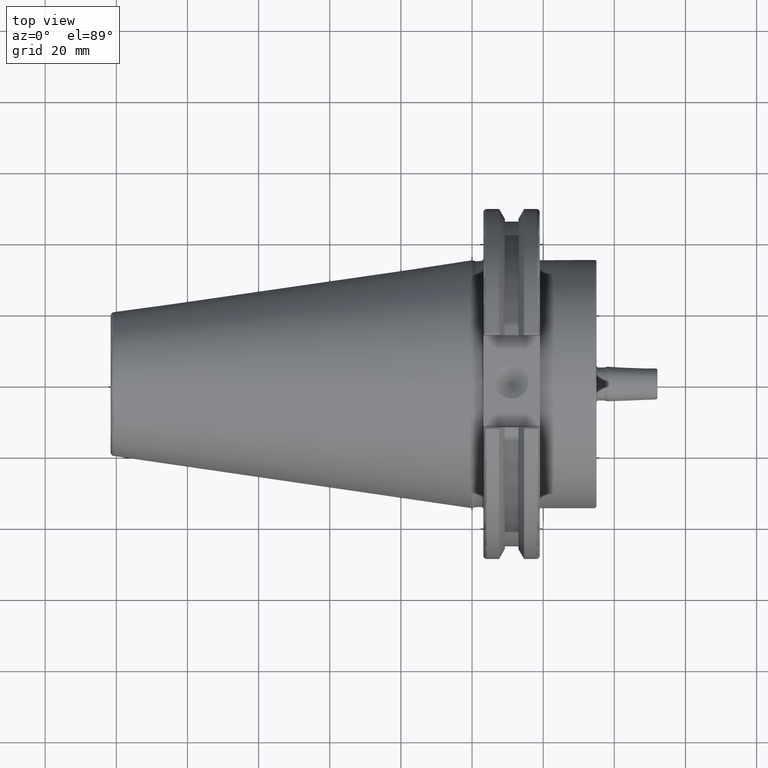
[diagram: clean part render]
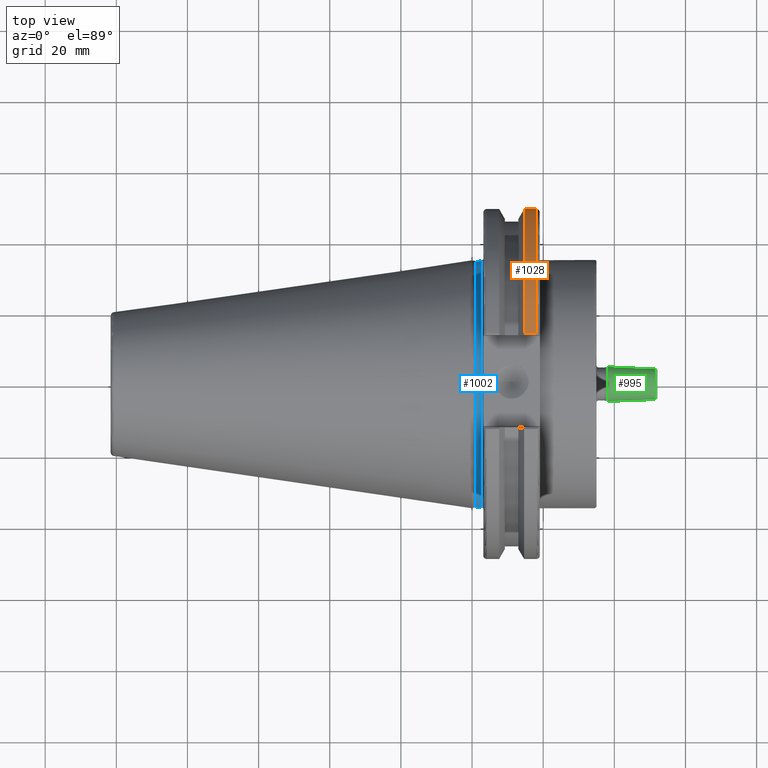
[diagram: same view with three faces highlighted in distinct colors, each labeled with its STEP entity id]
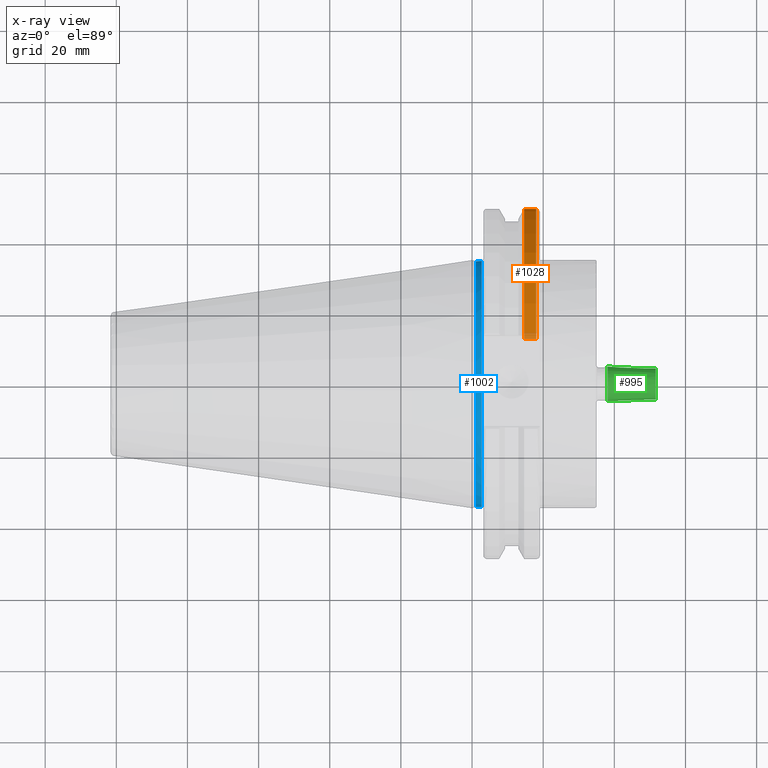
[diagram: x-ray of the same camera — body ghosted, the three highlighted faces saturated]
A machine part, top view with three faces highlighted in distinct colors.
The next image is the same camera in x-ray (body ghosted, the three faces saturated) — at least one of them is partly hidden behind the body in this view.
Their STEP definitions:

[orange] entity #1028 — the highlighted cylindrical surface (partial cylindrical patch) has radius 49.2125 mm, axis along (1, 0, 0).
#140=FACE_OUTER_BOUND('',#204,.T.);
#204=EDGE_LOOP('',(#887,#888,#889,#890));
#245=LINE('',#1610,#314);
#290=LINE('',#1870,#359);
#314=VECTOR('',#1288,10.);
#359=VECTOR('',#1409,10.);
#390=CIRCLE('',#1112,49.2125);
#404=CIRCLE('',#1151,49.2125);
#452=VERTEX_POINT('',#1584);
#453=VERTEX_POINT('',#1593);
#455=VERTEX_POINT('',#1606);
#512=VERTEX_POINT('',#1868);
#563=EDGE_CURVE('',#452,#453,#390,.T.);
#567=EDGE_CURVE('',#455,#452,#245,.T.);
#649=EDGE_CURVE('',#455,#512,#404,.T.);
#650=EDGE_CURVE('',#453,#512,#290,.T.);
#887=ORIENTED_EDGE('',*,*,#563,.F.);
#888=ORIENTED_EDGE('',*,*,#567,.F.);
#889=ORIENTED_EDGE('',*,*,#649,.T.);
#890=ORIENTED_EDGE('',*,*,#650,.F.);
#984=CYLINDRICAL_SURFACE('',#1150,49.2125);
#1028=ADVANCED_FACE('',(#140),#984,.T.);
#1112=AXIS2_PLACEMENT_3D('',#1594,#1283,#1284);
#1150=AXIS2_PLACEMENT_3D('',#1867,#1405,#1406);
#1151=AXIS2_PLACEMENT_3D('',#1869,#1407,#1408);
#1283=DIRECTION('center_axis',(1.,0.,0.));
#1284=DIRECTION('ref_axis',(0.,1.,-6.12323399573677E-17));
#1288=DIRECTION('',(1.,0.,0.));
#1405=DIRECTION('center_axis',(1.,0.,0.));
#1406=DIRECTION('ref_axis',(0.,1.,0.));
#1407=DIRECTION('center_axis',(1.,0.,0.));
#1408=DIRECTION('ref_axis',(0.,0.,-1.));
#1409=DIRECTION('',(-1.,0.,0.));
#1584=CARTESIAN_POINT('',(18.05,13.4317035994433,-47.3440544806494));
#1593=CARTESIAN_POINT('',(18.05,13.4317035994433,47.3440544806494));
#1594=CARTESIAN_POINT('Origin',(18.05,0.,0.));
#1606=CARTESIAN_POINT('',(14.6534090340487,13.4317035994433,-47.3440544806494));
#1610=CARTESIAN_POINT('',(16.8517045170244,13.4317035994433,-47.3440544806494));
#1867=CARTESIAN_POINT('Origin',(16.8517045170244,0.,0.));
#1868=CARTESIAN_POINT('',(14.6534090340487,13.4317035994433,47.3440544806494));
#1869=CARTESIAN_POINT('Origin',(14.6534090340487,0.,0.));
#1870=CARTESIAN_POINT('',(16.8517045170244,13.4317035994433,47.3440544806494));

[blue] entity #1002 — the highlighted cylindrical surface (bore or boss wall) has radius 34.625 mm, axis along (1, 0, 0).
#114=FACE_OUTER_BOUND('',#176,.T.);
#176=EDGE_LOOP('',(#733,#734,#735,#736,#737));
#243=LINE('',#1564,#312);
#312=VECTOR('',#1276,34.625);
#382=CIRCLE('',#1101,34.625);
#385=CIRCLE('',#1104,34.625);
#388=CIRCLE('',#1109,34.625);
#432=VERTEX_POINT('',#1530);
#433=VERTEX_POINT('',#1531);
#447=VERTEX_POINT('',#1563);
#541=EDGE_CURVE('',#432,#433,#382,.T.);
#544=EDGE_CURVE('',#433,#432,#385,.T.);
#557=EDGE_CURVE('',#432,#447,#243,.T.);
#558=EDGE_CURVE('',#447,#447,#388,.T.);
#733=ORIENTED_EDGE('',*,*,#541,.F.);
#734=ORIENTED_EDGE('',*,*,#557,.T.);
#735=ORIENTED_EDGE('',*,*,#558,.T.);
#736=ORIENTED_EDGE('',*,*,#557,.F.);
#737=ORIENTED_EDGE('',*,*,#544,.F.);
#980=CYLINDRICAL_SURFACE('',#1108,34.625);
#1002=ADVANCED_FACE('',(#114),#980,.T.);
#1101=AXIS2_PLACEMENT_3D('',#1532,#1250,#1251);
#1104=AXIS2_PLACEMENT_3D('',#1536,#1256,#1257);
#1108=AXIS2_PLACEMENT_3D('',#1562,#1274,#1275);
#1109=AXIS2_PLACEMENT_3D('',#1565,#1277,#1278);
#1250=DIRECTION('center_axis',(1.,0.,0.));
#1251=DIRECTION('ref_axis',(0.,-1.,1.83697019872103E-16));
#1256=DIRECTION('center_axis',(1.,0.,0.));
#1257=DIRECTION('ref_axis',(0.,-1.,1.83697019872103E-16));
#1274=DIRECTION('center_axis',(1.,0.,0.));
#1275=DIRECTION('ref_axis',(0.,1.,0.));
#1276=DIRECTION('',(-1.,0.,0.));
#1277=DIRECTION('center_axis',(1.,0.,0.));
#1278=DIRECTION('ref_axis',(0.,0.,-1.));
#1530=CARTESIAN_POINT('',(2.675,-34.625,-4.24033954204771E-15));
#1531=CARTESIAN_POINT('',(2.675,-4.24033954204771E-15,34.625));
#1532=CARTESIAN_POINT('Origin',(2.675,0.,0.));
#1536=CARTESIAN_POINT('Origin',(2.675,0.,0.));
#1562=CARTESIAN_POINT('Origin',(2.14730762113533,0.,0.));
#1563=CARTESIAN_POINT('',(1.11961524227064,-34.625,-4.24033954204771E-15));
#1564=CARTESIAN_POINT('',(2.14730762113533,-34.625,-4.24033954204771E-15));
#1565=CARTESIAN_POINT('Origin',(1.11961524227064,0.,0.));

[green] entity #995 — the highlighted conical surface has half-angle 2.207 deg.
#48=CONICAL_SURFACE('',#1089,4.61645022377001,0.0385259092163323);
#107=FACE_OUTER_BOUND('',#168,.T.);
#168=EDGE_LOOP('',(#697,#698,#699,#700,#701));
#230=LINE('',#1513,#299);
#299=VECTOR('',#1227,4.61645022377001);
#375=CIRCLE('',#1088,4.877);
#376=CIRCLE('',#1090,4.35590044754001);
#377=CIRCLE('',#1091,4.35590044754001);
#425=VERTEX_POINT('',#1506);
#426=VERTEX_POINT('',#1510);
#427=VERTEX_POINT('',#1511);
#530=EDGE_CURVE('',#425,#425,#375,.T.);
#532=EDGE_CURVE('',#426,#427,#376,.T.);
#533=EDGE_CURVE('',#426,#425,#230,.T.);
#534=EDGE_CURVE('',#427,#426,#377,.T.);
#697=ORIENTED_EDGE('',*,*,#532,.F.);
#698=ORIENTED_EDGE('',*,*,#533,.T.);
#699=ORIENTED_EDGE('',*,*,#530,.T.);
#700=ORIENTED_EDGE('',*,*,#533,.F.);
#701=ORIENTED_EDGE('',*,*,#534,.F.);
#995=ADVANCED_FACE('',(#107),#48,.T.);
#1088=AXIS2_PLACEMENT_3D('',#1507,#1220,#1221);
#1089=AXIS2_PLACEMENT_3D('',#1509,#1223,#1224);
#1090=AXIS2_PLACEMENT_3D('',#1512,#1225,#1226);
#1091=AXIS2_PLACEMENT_3D('',#1514,#1228,#1229);
#1220=DIRECTION('center_axis',(1.,0.,0.));
#1221=DIRECTION('ref_axis',(0.,0.,-1.));
#1223=DIRECTION('center_axis',(-1.,0.,0.));
#1224=DIRECTION('ref_axis',(0.,1.,0.));
#1225=DIRECTION('center_axis',(1.,0.,0.));
#1226=DIRECTION('ref_axis',(0.,0.,-1.));
#1227=DIRECTION('',(-0.999257968946038,-0.0385163796045142,-4.71689609974127E-18));
#1228=DIRECTION('center_axis',(1.,0.,0.));
#1229=DIRECTION('ref_axis',(0.,0.,-1.));
#1506=CARTESIAN_POINT('',(38.1,-4.877,-5.97260243944164E-16));
#1507=CARTESIAN_POINT('Origin',(38.1,0.,0.));
#1509=CARTESIAN_POINT('Origin',(44.8596290949011,0.,0.));
#1510=CARTESIAN_POINT('',(51.6192581898022,-4.35590044754001,-5.3344395404844E-16));
#1511=CARTESIAN_POINT('',(51.6192581898022,-5.3344395404844E-16,4.35590044754001));
#1512=CARTESIAN_POINT('Origin',(51.6192581898022,0.,0.));
#1513=CARTESIAN_POINT('',(44.8596290949011,-4.61645022377001,-5.65352098996302E-16));
#1514=CARTESIAN_POINT('Origin',(51.6192581898022,0.,0.));